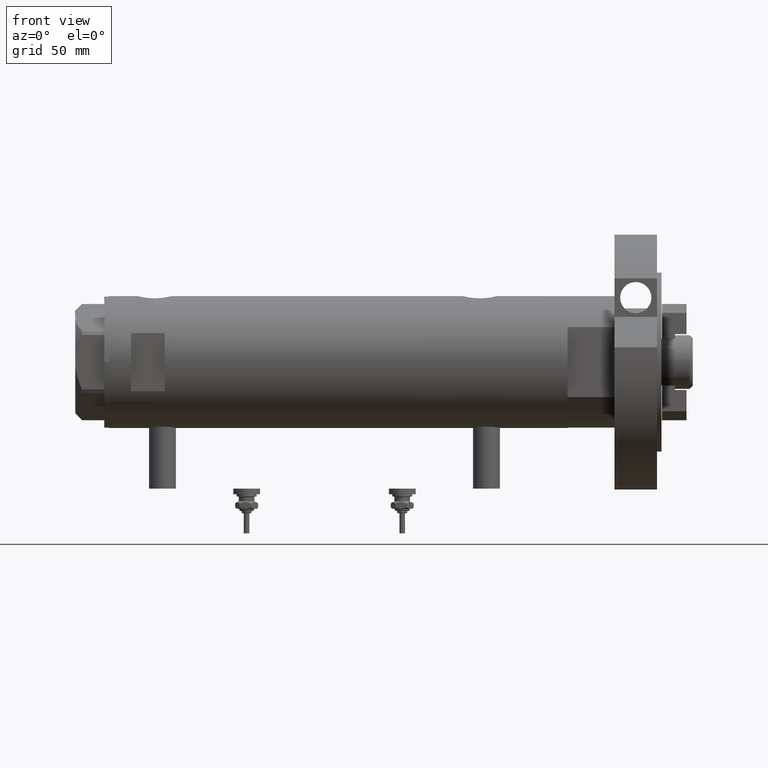
[diagram: clean part render]
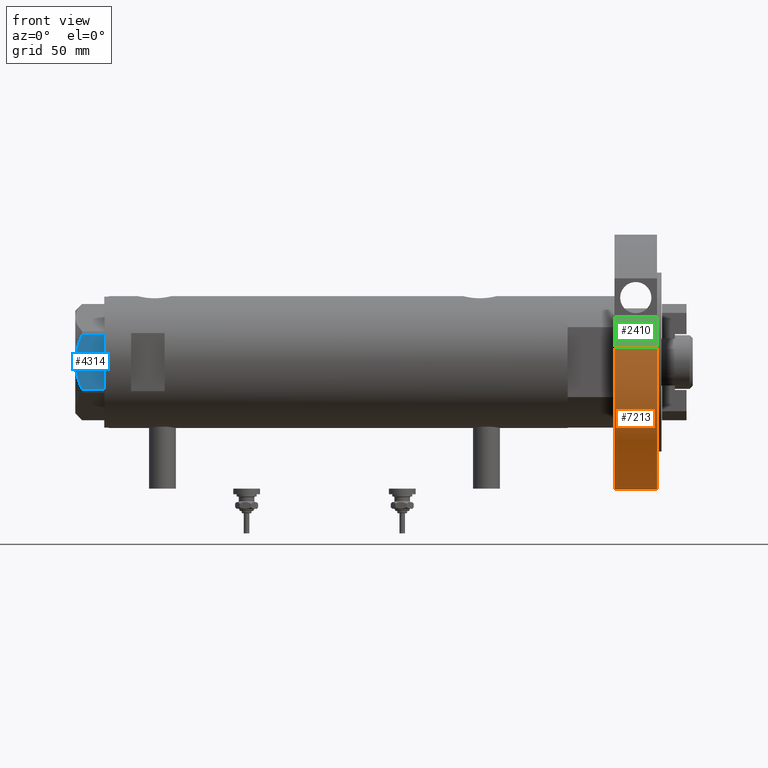
[diagram: same view with three faces highlighted in distinct colors, each labeled with its STEP entity id]
A machine part, front view with three faces highlighted in distinct colors.
Their STEP definitions:

[orange] entity #7213 — the highlighted cylindrical surface (partial cylindrical patch) has radius 57 mm, axis along (-1, -0, 0).
#20 = CARTESIAN_POINT ( 'NONE',  ( -57.00000000000000000, 0.000000000000000000, 19.00000000000000000 ) ) ;
#45 = CARTESIAN_POINT ( 'NONE',  ( 6.569366352211361004, 56.62016801220598694, 0.000000000000000000 ) ) ;
#736 = ORIENTED_EDGE ( 'NONE', *, *, #5198, .F. ) ;
#1109 = AXIS2_PLACEMENT_3D ( 'NONE', #7216, #5980, #5357 ) ;
#1130 = EDGE_CURVE ( 'NONE', #1877, #8189, #2176, .T. ) ;
#1673 = DIRECTION ( 'NONE',  ( 0.000000000000000000, 0.000000000000000000, 1.000000000000000000 ) ) ;
#1760 = ORIENTED_EDGE ( 'NONE', *, *, #1130, .F. ) ;
#1851 = VERTEX_POINT ( 'NONE', #3184 ) ;
#1877 = VERTEX_POINT ( 'NONE', #5778 ) ;
#2176 = CIRCLE ( 'NONE', #3268, 57.00000000000000000 ) ;
#3184 = CARTESIAN_POINT ( 'NONE',  ( -57.00000000000000000, 0.000000000000000000, 0.000000000000000000 ) ) ;
#3268 = AXIS2_PLACEMENT_3D ( 'NONE', #8056, #1673, #4163 ) ;
#3395 = DIRECTION ( 'NONE',  ( -1.000000000000000000, 0.000000000000000000, 0.000000000000000000 ) ) ;
#3472 = AXIS2_PLACEMENT_3D ( 'NONE', #4599, #5231, #3395 ) ;
#3822 = EDGE_CURVE ( 'NONE', #4080, #1851, #4884, .T. ) ;
#3866 = CARTESIAN_POINT ( 'NONE',  ( -57.00000000000000000, 0.000000000000000000, 19.00000000000000000 ) ) ;
#3973 = FACE_OUTER_BOUND ( 'NONE', #4088, .T. ) ;
#4080 = VERTEX_POINT ( 'NONE', #45 ) ;
#4088 = EDGE_LOOP ( 'NONE', ( #4649, #1760, #736, #6312 ) ) ;
#4163 = DIRECTION ( 'NONE',  ( 1.000000000000000000, 0.000000000000000000, 0.000000000000000000 ) ) ;
#4359 = DIRECTION ( 'NONE',  ( -0.000000000000000000, -0.000000000000000000, -1.000000000000000000 ) ) ;
#4599 = CARTESIAN_POINT ( 'NONE',  ( 0.000000000000000000, 0.000000000000000000, 19.00000000000000000 ) ) ;
#4649 = ORIENTED_EDGE ( 'NONE', *, *, #5564, .F. ) ;
#4884 = CIRCLE ( 'NONE', #1109, 57.00000000000000000 ) ;
#5198 = EDGE_CURVE ( 'NONE', #4080, #1877, #7883, .T. ) ;
#5231 = DIRECTION ( 'NONE',  ( -0.000000000000000000, -0.000000000000000000, -1.000000000000000000 ) ) ;
#5312 = CYLINDRICAL_SURFACE ( 'NONE', #3472, 57.00000000000000000 ) ;
#5357 = DIRECTION ( 'NONE',  ( 1.000000000000000000, 0.000000000000000000, 0.000000000000000000 ) ) ;
#5564 = EDGE_CURVE ( 'NONE', #8189, #1851, #7009, .T. ) ;
#5778 = CARTESIAN_POINT ( 'NONE',  ( 6.569366352211361004, 56.62016801220598694, 19.00000000000000000 ) ) ;
#5980 = DIRECTION ( 'NONE',  ( 0.000000000000000000, 0.000000000000000000, 1.000000000000000000 ) ) ;
#6312 = ORIENTED_EDGE ( 'NONE', *, *, #3822, .T. ) ;
#6375 = VECTOR ( 'NONE', #7356, 1000.000000000000000 ) ;
#6517 = VECTOR ( 'NONE', #4359, 1000.000000000000000 ) ;
#7009 = LINE ( 'NONE', #3866, #6517 ) ;
#7213 = ADVANCED_FACE ( 'NONE', ( #3973 ), #5312, .T. ) ;
#7216 = CARTESIAN_POINT ( 'NONE',  ( 0.000000000000000000, 0.000000000000000000, 0.000000000000000000 ) ) ;
#7262 = CARTESIAN_POINT ( 'NONE',  ( 6.569366352211361004, 56.62016801220598694, 0.000000000000000000 ) ) ;
#7356 = DIRECTION ( 'NONE',  ( -0.000000000000000000, -0.000000000000000000, 1.000000000000000000 ) ) ;
#7883 = LINE ( 'NONE', #7262, #6375 ) ;
#8056 = CARTESIAN_POINT ( 'NONE',  ( 0.000000000000000000, 0.000000000000000000, 19.00000000000000000 ) ) ;
#8189 = VERTEX_POINT ( 'NONE', #20 ) ;

[blue] entity #4314 — the highlighted planar face has unit normal (-0, 1, -0).
#249 = CARTESIAN_POINT ( 'NONE',  ( -22.99999999999990763, -12.15905619136148985, 13.00000000000000000 ) ) ;
#533 = LINE ( 'NONE', #3114, #3915 ) ;
#663 = CARTESIAN_POINT ( 'NONE',  ( -22.99999999999994316, -2.643615312305168441, 12.85430456063626714 ) ) ;
#750 = CARTESIAN_POINT ( 'NONE',  ( -22.99999999999992184, -7.253003311474400583, 11.90327681034764140 ) ) ;
#836 = CARTESIAN_POINT ( 'NONE',  ( -22.99999999999996092, 2.122900714018063795, 13.00000000000009592 ) ) ;
#956 = DIRECTION ( 'NONE',  ( -3.527173405730720929E-15, 1.000000000000000000, 0.000000000000000000 ) ) ;
#998 = ORIENTED_EDGE ( 'NONE', *, *, #1548, .T. ) ;
#1221 = B_SPLINE_CURVE_WITH_KNOTS ( 'NONE', 3,
 ( #5133, #7698, #1934, #4508, #663, #3246, #6561, #750, #7242, #7776, #7816, #2053, #2648, #6477 ),
 .UNSPECIFIED., .F., .F.,
 ( 4, 2, 2, 2, 2, 2, 4 ),
 ( 0.04777139595992690307, 0.04934380568070230455, 0.05091621540147769909, 0.05406103484302849510, 0.05720585428457929111, 0.05877826400535468565, 0.06035067372613008019 ),
 .UNSPECIFIED. ) ;
#1303 = B_SPLINE_CURVE_WITH_KNOTS ( 'NONE', 3,
 ( #6564, #3920, #7205, #4676, #1388, #2140, #3475, #1463, #836, #2825 ),
 .UNSPECIFIED., .F., .F.,
 ( 4, 2, 2, 2, 4 ),
 ( 0.03516523594057417712, 0.03831677594541236381, 0.03989254594783145369, 0.04146831595025054357, 0.04777139595992690307 ),
 .UNSPECIFIED. ) ;
#1338 = EDGE_CURVE ( 'NONE', #1677, #4603, #4709, .T. ) ;
#1388 = CARTESIAN_POINT ( 'NONE',  ( -22.99999999999997513, 8.246028007352348865, 11.57113180864690705 ) ) ;
#1463 = CARTESIAN_POINT ( 'NONE',  ( -22.99999999999996447, 4.194757081058973824, 12.70300035152520302 ) ) ;
#1537 = LINE ( 'NONE', #249, #8233 ) ;
#1548 = EDGE_CURVE ( 'NONE', #7103, #1677, #533, .T. ) ;
#1677 = VERTEX_POINT ( 'NONE', #3455 ) ;
#1934 = CARTESIAN_POINT ( 'NONE',  ( -22.99999999999994316, -1.063773509315741217, 12.98143808360682883 ) ) ;
#2039 = DIRECTION ( 'NONE',  ( 0.000000000000000000, 0.000000000000000000, -1.000000000000000000 ) ) ;
#2053 = CARTESIAN_POINT ( 'NONE',  ( -22.99999999999990763, -11.20155944044818241, 10.42110268263274264 ) ) ;
#2103 = DIRECTION ( 'NONE',  ( 1.000000000000000000, 3.527173405730720929E-15, -0.000000000000000000 ) ) ;
#2140 = CARTESIAN_POINT ( 'NONE',  ( -22.99999999999997513, 7.239756182922193695, 11.89218606342285156 ) ) ;
#2258 = ORIENTED_EDGE ( 'NONE', *, *, #4225, .F. ) ;
#2648 = CARTESIAN_POINT ( 'NONE',  ( -22.99999999999991473, -11.68282849742337248, 10.20637235269541776 ) ) ;
#2736 = CARTESIAN_POINT ( 'NONE',  ( -22.99999999999999645, 13.27905619136132032, 13.00000000000000000 ) ) ;
#2738 = EDGE_CURVE ( 'NONE', #2787, #3891, #1221, .T. ) ;
#2787 = VERTEX_POINT ( 'NONE', #3471 ) ;
#2825 = CARTESIAN_POINT ( 'NONE',  ( -23.00000000000004619, -8.112498833180673323E-14, 13.00000000000000000 ) ) ;
#3114 = CARTESIAN_POINT ( 'NONE',  ( -22.99999999999999289, 12.15905619136131754, 13.00000000000000000 ) ) ;
#3246 = CARTESIAN_POINT ( 'NONE',  ( -22.99999999999992895, -4.203926054641974552, 12.64168122312250553 ) ) ;
#3371 = EDGE_CURVE ( 'NONE', #4603, #3891, #1537, .T. ) ;
#3455 = CARTESIAN_POINT ( 'NONE',  ( -22.99999999999999289, 12.15905619136131754, 0.000000000000000000 ) ) ;
#3471 = CARTESIAN_POINT ( 'NONE',  ( -23.00000000000004619, -8.112498833180673323E-14, 13.00000000000000000 ) ) ;
#3475 = CARTESIAN_POINT ( 'NONE',  ( -22.99999999999997513, 6.734330413511418811, 12.03938974125266981 ) ) ;
#3891 = VERTEX_POINT ( 'NONE', #7500 ) ;
#3915 = VECTOR ( 'NONE', #2039, 1000.000000000000000 ) ;
#3920 = CARTESIAN_POINT ( 'NONE',  ( -22.99999999999998579, 11.20825071633914582, 10.42817330637845430 ) ) ;
#3952 = AXIS2_PLACEMENT_3D ( 'NONE', #2736, #2103, #956 ) ;
#4225 = EDGE_CURVE ( 'NONE', #7103, #2787, #1303, .T. ) ;
#4314 = ADVANCED_FACE ( 'NONE', ( #6481 ), #7819, .F. ) ;
#4508 = CARTESIAN_POINT ( 'NONE',  ( -22.99999999999993250, -2.119709279061928964, 12.90853521217319688 ) ) ;
#4603 = VERTEX_POINT ( 'NONE', #8314 ) ;
#4676 = CARTESIAN_POINT ( 'NONE',  ( -22.99999999999997158, 8.748091966971372813, 11.39681897828457302 ) ) ;
#4709 = LINE ( 'NONE', #5339, #6323 ) ;
#5133 = CARTESIAN_POINT ( 'NONE',  ( -23.00000000000004619, -8.112498833180673323E-14, 13.00000000000000000 ) ) ;
#5272 = ORIENTED_EDGE ( 'NONE', *, *, #2738, .F. ) ;
#5297 = ORIENTED_EDGE ( 'NONE', *, *, #3371, .T. ) ;
#5339 = CARTESIAN_POINT ( 'NONE',  ( -22.99999999999999645, 13.27905619136132032, 0.000000000000000000 ) ) ;
#6323 = VECTOR ( 'NONE', #7813, 1000.000000000000000 ) ;
#6477 = CARTESIAN_POINT ( 'NONE',  ( -22.99999999999990763, -12.15905619136149340, 9.983800287807616414 ) ) ;
#6481 = FACE_OUTER_BOUND ( 'NONE', #6832, .T. ) ;
#6561 = CARTESIAN_POINT ( 'NONE',  ( -22.99999999999993250, -5.228918809624134134, 12.43333703384985611 ) ) ;
#6564 = CARTESIAN_POINT ( 'NONE',  ( -22.99999999999999289, 12.15905619136132110, 9.983800287807621743 ) ) ;
#6832 = EDGE_LOOP ( 'NONE', ( #2258, #998, #7248, #5297, #5272 ) ) ;
#7103 = VERTEX_POINT ( 'NONE', #7913 ) ;
#7205 = CARTESIAN_POINT ( 'NONE',  ( -22.99999999999998579, 10.23890159976121517, 10.84081242829091707 ) ) ;
#7242 = CARTESIAN_POINT ( 'NONE',  ( -22.99999999999992184, -8.252113629125281236, 11.58164206268022234 ) ) ;
#7248 = ORIENTED_EDGE ( 'NONE', *, *, #1338, .T. ) ;
#7270 = DIRECTION ( 'NONE',  ( 0.000000000000000000, 0.000000000000000000, 1.000000000000000000 ) ) ;
#7500 = CARTESIAN_POINT ( 'NONE',  ( -22.99999999999990763, -12.15905619136149340, 9.983800287807616414 ) ) ;
#7698 = CARTESIAN_POINT ( 'NONE',  ( -22.99999999999995381, -0.5295934231897790889, 13.00000000000009237 ) ) ;
#7776 = CARTESIAN_POINT ( 'NONE',  ( -22.99999999999991829, -9.734726261263313418, 11.02892470009565251 ) ) ;
#7813 = DIRECTION ( 'NONE',  ( 3.527173405730720141E-15, -1.000000000000000000, 0.000000000000000000 ) ) ;
#7816 = CARTESIAN_POINT ( 'NONE',  ( -22.99999999999991473, -10.22738952213796715, 10.83247031367477398 ) ) ;
#7819 = PLANE ( 'NONE',  #3952 ) ;
#7913 = CARTESIAN_POINT ( 'NONE',  ( -22.99999999999999289, 12.15905619136132110, 9.983800287807621743 ) ) ;
#8233 = VECTOR ( 'NONE', #7270, 1000.000000000000000 ) ;
#8314 = CARTESIAN_POINT ( 'NONE',  ( -22.99999999999990763, -12.15905619136148985, 0.000000000000000000 ) ) ;

[green] entity #2410 — the highlighted planar face has unit normal (-0, 0.7071, -0.7071).
#45 = CARTESIAN_POINT ( 'NONE',  ( 6.569366352211361004, 56.62016801220598694, 0.000000000000000000 ) ) ;
#166 = VECTOR ( 'NONE', #6893, 1000.000000000000000 ) ;
#419 = CARTESIAN_POINT ( 'NONE',  ( 20.20945616129993283, 42.98007820311755012, 0.000000000000000000 ) ) ;
#1157 = ORIENTED_EDGE ( 'NONE', *, *, #1242, .F. ) ;
#1242 = EDGE_CURVE ( 'NONE', #5910, #4807, #1593, .T. ) ;
#1593 = LINE ( 'NONE', #8149, #166 ) ;
#1877 = VERTEX_POINT ( 'NONE', #5778 ) ;
#2133 = EDGE_LOOP ( 'NONE', ( #3363, #1157, #2436, #2511 ) ) ;
#2170 = CARTESIAN_POINT ( 'NONE',  ( 20.20945616129993283, 42.98007820311755012, 19.00000000000000000 ) ) ;
#2270 = CARTESIAN_POINT ( 'NONE',  ( 31.59476718220863845, 31.59476718220895108, 19.00000000000000000 ) ) ;
#2410 = ADVANCED_FACE ( 'NONE', ( #2657 ), #6612, .F. ) ;
#2436 = ORIENTED_EDGE ( 'NONE', *, *, #7358, .F. ) ;
#2511 = ORIENTED_EDGE ( 'NONE', *, *, #5198, .T. ) ;
#2657 = FACE_OUTER_BOUND ( 'NONE', #2133, .T. ) ;
#2746 = DIRECTION ( 'NONE',  ( 0.7071067811865510144, -0.7071067811865441310, 0.000000000000000000 ) ) ;
#2900 = LINE ( 'NONE', #2270, #5289 ) ;
#3363 = ORIENTED_EDGE ( 'NONE', *, *, #4424, .T. ) ;
#3436 = CARTESIAN_POINT ( 'NONE',  ( 20.20945616129993283, 42.98007820311755012, 0.000000000000000000 ) ) ;
#4080 = VERTEX_POINT ( 'NONE', #45 ) ;
#4195 = AXIS2_PLACEMENT_3D ( 'NONE', #3436, #6654, #2746 ) ;
#4424 = EDGE_CURVE ( 'NONE', #1877, #4807, #2900, .T. ) ;
#4807 = VERTEX_POINT ( 'NONE', #2170 ) ;
#4819 = LINE ( 'NONE', #6830, #5325 ) ;
#5198 = EDGE_CURVE ( 'NONE', #4080, #1877, #7883, .T. ) ;
#5289 = VECTOR ( 'NONE', #5591, 999.9999999999998863 ) ;
#5325 = VECTOR ( 'NONE', #7347, 999.9999999999998863 ) ;
#5591 = DIRECTION ( 'NONE',  ( 0.7071067811865510144, -0.7071067811865441310, 0.000000000000000000 ) ) ;
#5778 = CARTESIAN_POINT ( 'NONE',  ( 6.569366352211361004, 56.62016801220598694, 19.00000000000000000 ) ) ;
#5910 = VERTEX_POINT ( 'NONE', #419 ) ;
#6375 = VECTOR ( 'NONE', #7356, 1000.000000000000000 ) ;
#6612 = PLANE ( 'NONE',  #4195 ) ;
#6654 = DIRECTION ( 'NONE',  ( -0.7071067811865441310, -0.7071067811865510144, 0.000000000000000000 ) ) ;
#6830 = CARTESIAN_POINT ( 'NONE',  ( 20.20945616129993283, 42.98007820311755012, 0.000000000000000000 ) ) ;
#6893 = DIRECTION ( 'NONE',  ( -0.000000000000000000, -0.000000000000000000, 1.000000000000000000 ) ) ;
#7262 = CARTESIAN_POINT ( 'NONE',  ( 6.569366352211361004, 56.62016801220598694, 0.000000000000000000 ) ) ;
#7347 = DIRECTION ( 'NONE',  ( 0.7071067811865510144, -0.7071067811865441310, -0.000000000000000000 ) ) ;
#7356 = DIRECTION ( 'NONE',  ( -0.000000000000000000, -0.000000000000000000, 1.000000000000000000 ) ) ;
#7358 = EDGE_CURVE ( 'NONE', #4080, #5910, #4819, .T. ) ;
#7883 = LINE ( 'NONE', #7262, #6375 ) ;
#8149 = CARTESIAN_POINT ( 'NONE',  ( 20.20945616129993283, 42.98007820311755012, 0.000000000000000000 ) ) ;